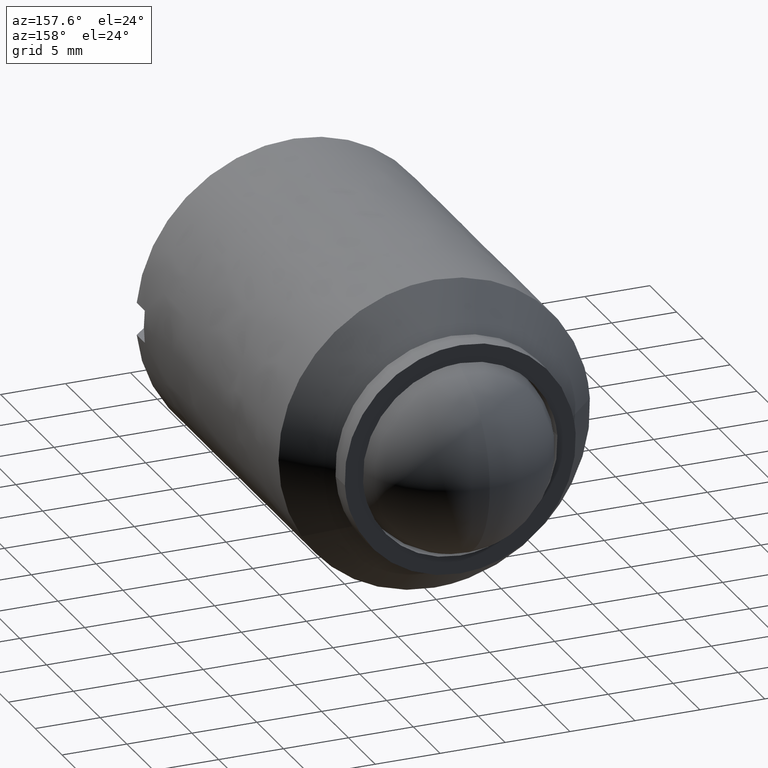
[diagram: clean part render]
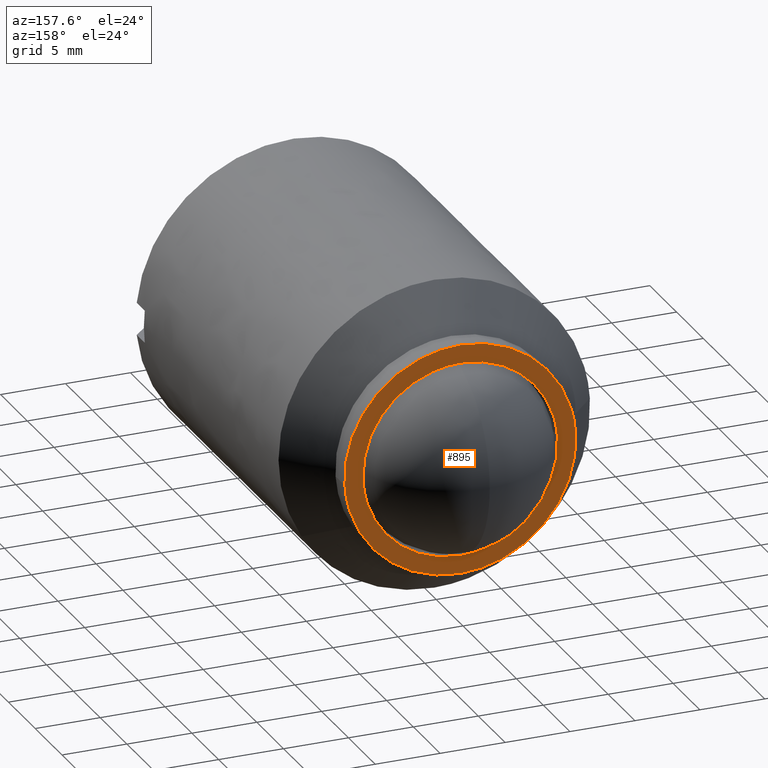
[diagram: same view with one face highlighted and labeled with its STEP entity id]
A machine part, auxiliary view. The second image highlights one B-rep face of the part: STEP entity #895.
In plain terms, the highlighted face is a freeform B-spline surface patch.
Its self-contained STEP definition (entity closure, byte-faithful):
#83=CARTESIAN_POINT('',(-7.476880907055129,-5.500000000000000,0.588431730604044));
#84=VERTEX_POINT('',#83);
#90=CARTESIAN_POINT('',(0.0,-5.500000000000000,7.500000000000000));
#91=VERTEX_POINT('',#90);
#92=CARTESIAN_POINT('',(0.0,-5.500000000000000,7.500000000000000));
#93=CARTESIAN_POINT('',(-6.932939372016810,-5.500000000000001,7.500000000000000));
#94=CARTESIAN_POINT('',(-7.476880907055129,-5.500000000000001,0.588431730604044));
#102=(BOUNDED_CURVE()B_SPLINE_CURVE(2,(#92,#93,#94),.UNSPECIFIED.,.F.,.U.)B_SPLINE_CURVE_WITH_KNOTS((3,3),(0.0,0.236331564006562),.UNSPECIFIED.)CURVE()GEOMETRIC_REPRESENTATION_ITEM()RATIONAL_B_SPLINE_CURVE((1.0,0.723120350043603,0.969723905813483))REPRESENTATION_ITEM(''));
#103=EDGE_CURVE('',#91,#84,#102,.T.);
#105=CARTESIAN_POINT('',(7.476880907055129,-5.500000000000000,-0.588431730604044));
#106=VERTEX_POINT('',#105);
#107=CARTESIAN_POINT('',(7.476880907055129,-5.500000000000000,-0.588431730604044));
#108=CARTESIAN_POINT('',(7.500000000000000,-5.500000000000000,-0.294670032226402));
#109=CARTESIAN_POINT('',(7.500000000000000,-5.500000000000000,0.0));
#110=CARTESIAN_POINT('',(7.500000000000000,-5.500000000000000,7.500000000000000));
#111=CARTESIAN_POINT('',(0.0,-5.500000000000000,7.500000000000000));
#119=(BOUNDED_CURVE()B_SPLINE_CURVE(2,(#107,#108,#109,#110,#111),.UNSPECIFIED.,.F.,.U.)B_SPLINE_CURVE_WITH_KNOTS((3,2,3),(0.736331564006562,0.750000000000000,1.0),.UNSPECIFIED.)CURVE()GEOMETRIC_REPRESENTATION_ITEM()RATIONAL_B_SPLINE_CURVE((0.969723905813483,0.983986431142945,1.0,0.707106781186547,1.0))REPRESENTATION_ITEM(''));
#120=EDGE_CURVE('',#106,#91,#119,.T.);
#200=CARTESIAN_POINT('',(0.0,-5.500000000000000,-7.500000000000000));
#201=VERTEX_POINT('',#200);
#202=CARTESIAN_POINT('',(0.0,-5.500000000000000,-7.500000000000000));
#203=CARTESIAN_POINT('',(6.932939372016812,-5.500000000000000,-7.500000000000000));
#204=CARTESIAN_POINT('',(7.476880907055129,-5.500000000000000,-0.588431730604044));
#212=(BOUNDED_CURVE()B_SPLINE_CURVE(2,(#202,#203,#204),.UNSPECIFIED.,.F.,.U.)B_SPLINE_CURVE_WITH_KNOTS((3,3),(0.500000000000000,0.736331564006562),.UNSPECIFIED.)CURVE()GEOMETRIC_REPRESENTATION_ITEM()RATIONAL_B_SPLINE_CURVE((1.0,0.723120350043603,0.969723905813483))REPRESENTATION_ITEM(''));
#213=EDGE_CURVE('',#201,#106,#212,.T.);
#215=CARTESIAN_POINT('',(-7.476880907055129,-5.500000000000001,0.588431730604044));
#216=CARTESIAN_POINT('',(-7.500000000000000,-5.500000000000001,0.294670032226404));
#217=CARTESIAN_POINT('',(-7.500000000000000,-5.500000000000000,0.0));
#218=CARTESIAN_POINT('',(-7.500000000000000,-5.500000000000000,-7.500000000000000));
#219=CARTESIAN_POINT('',(0.0,-5.500000000000000,-7.500000000000000));
#227=(BOUNDED_CURVE()B_SPLINE_CURVE(2,(#215,#216,#217,#218,#219),.UNSPECIFIED.,.F.,.U.)B_SPLINE_CURVE_WITH_KNOTS((3,2,3),(0.236331564006562,0.250000000000000,0.500000000000000),.UNSPECIFIED.)CURVE()GEOMETRIC_REPRESENTATION_ITEM()RATIONAL_B_SPLINE_CURVE((0.969723905813483,0.983986431142945,1.0,0.707106781186547,1.0))REPRESENTATION_ITEM(''));
#228=EDGE_CURVE('',#84,#201,#227,.T.);
#271=CARTESIAN_POINT('',(8.883400044957174,-5.500000000000000,-0.543326459160618));
#272=VERTEX_POINT('',#271);
#278=CARTESIAN_POINT('',(0.0,-5.500000000000000,8.899999999999999));
#279=VERTEX_POINT('',#278);
#280=CARTESIAN_POINT('',(8.883400044957174,-5.500000000000000,-0.543326459160618));
#281=CARTESIAN_POINT('',(8.900000000000000,-5.500000000000001,-0.271916814237175));
#282=CARTESIAN_POINT('',(8.900000000000000,-5.500000000000000,-2.571673E-015));
#283=CARTESIAN_POINT('',(8.900000000000000,-5.500000000000001,8.899999999999999));
#284=CARTESIAN_POINT('',(0.0,-5.500000000000000,8.899999999999999));
#292=(BOUNDED_CURVE()B_SPLINE_CURVE(2,(#280,#281,#282,#283,#284),.UNSPECIFIED.,.F.,.U.)B_SPLINE_CURVE_WITH_KNOTS((3,2,3),(0.239333069900650,0.250000000000000,0.500000000000000),.UNSPECIFIED.)CURVE()GEOMETRIC_REPRESENTATION_ITEM()RATIONAL_B_SPLINE_CURVE((0.976072272406359,0.987502914033373,1.0,0.707106781186548,1.0))REPRESENTATION_ITEM(''));
#293=EDGE_CURVE('',#272,#279,#292,.T.);
#295=CARTESIAN_POINT('',(-8.883400044957174,-5.500000000000000,0.543326459160610));
#296=VERTEX_POINT('',#295);
#297=CARTESIAN_POINT('',(0.0,-5.500000000000000,8.899999999999999));
#298=CARTESIAN_POINT('',(-8.372289229018241,-5.500000000000001,8.899999999999997));
#299=CARTESIAN_POINT('',(-8.883400044957174,-5.500000000000000,0.543326459160610));
#307=(BOUNDED_CURVE()B_SPLINE_CURVE(2,(#297,#298,#299),.UNSPECIFIED.,.F.,.U.)B_SPLINE_CURVE_WITH_KNOTS((3,3),(0.500000000000000,0.739333069900650),.UNSPECIFIED.)CURVE()GEOMETRIC_REPRESENTATION_ITEM()RATIONAL_B_SPLINE_CURVE((1.0,0.719603867153174,0.976072272406359))REPRESENTATION_ITEM(''));
#308=EDGE_CURVE('',#279,#296,#307,.T.);
#397=CARTESIAN_POINT('',(0.0,-5.500000000000000,-8.900000000000002));
#398=VERTEX_POINT('',#397);
#399=CARTESIAN_POINT('',(-8.883400044957174,-5.500000000000000,0.543326459160610));
#400=CARTESIAN_POINT('',(-8.900000000000000,-5.500000000000001,0.271916814237170));
#401=CARTESIAN_POINT('',(-8.900000000000000,-5.500000000000000,-2.571673E-015));
#402=CARTESIAN_POINT('',(-8.900000000000000,-5.500000000000001,-8.900000000000002));
#403=CARTESIAN_POINT('',(0.0,-5.500000000000000,-8.900000000000002));
#411=(BOUNDED_CURVE()B_SPLINE_CURVE(2,(#399,#400,#401,#402,#403),.UNSPECIFIED.,.F.,.U.)B_SPLINE_CURVE_WITH_KNOTS((3,2,3),(0.739333069900650,0.750000000000000,1.0),.UNSPECIFIED.)CURVE()GEOMETRIC_REPRESENTATION_ITEM()RATIONAL_B_SPLINE_CURVE((0.976072272406359,0.987502914033373,1.0,0.707106781186548,1.0))REPRESENTATION_ITEM(''));
#412=EDGE_CURVE('',#296,#398,#411,.T.);
#414=CARTESIAN_POINT('',(0.0,-5.500000000000000,-8.900000000000002));
#415=CARTESIAN_POINT('',(8.372289229018241,-5.500000000000001,-8.900000000000002));
#416=CARTESIAN_POINT('',(8.883400044957174,-5.500000000000000,-0.543326459160618));
#424=(BOUNDED_CURVE()B_SPLINE_CURVE(2,(#414,#415,#416),.UNSPECIFIED.,.F.,.U.)B_SPLINE_CURVE_WITH_KNOTS((3,3),(0.0,0.239333069900650),.UNSPECIFIED.)CURVE()GEOMETRIC_REPRESENTATION_ITEM()RATIONAL_B_SPLINE_CURVE((1.0,0.719603867153174,0.976072272406359))REPRESENTATION_ITEM(''));
#425=EDGE_CURVE('',#398,#272,#424,.T.);
#878=CARTESIAN_POINT('',(-9.788891344833242,-5.500000000000000,9.789109567718713));
#879=CARTESIAN_POINT('',(-9.788891344833242,-5.500000000000000,-9.789109090285512));
#880=CARTESIAN_POINT('',(9.788891981410851,-5.500000000000000,9.789109567718713));
#881=CARTESIAN_POINT('',(9.788891981410851,-5.500000000000000,-9.789109090285512));
#882=B_SPLINE_SURFACE_WITH_KNOTS('',1,1,((#878,#880),(#879,#881)),.UNSPECIFIED.,.F.,.F.,.U.,(2,2),(2,2),(0.0,19.578218658004229),(0.0,19.577783326244099),.UNSPECIFIED.);
#883=ORIENTED_EDGE('',*,*,#412,.F.);
#884=ORIENTED_EDGE('',*,*,#308,.F.);
#885=ORIENTED_EDGE('',*,*,#293,.F.);
#886=ORIENTED_EDGE('',*,*,#425,.F.);
#887=EDGE_LOOP('',(#883,#884,#885,#886));
#888=FACE_OUTER_BOUND('',#887,.T.);
#889=ORIENTED_EDGE('',*,*,#213,.T.);
#890=ORIENTED_EDGE('',*,*,#120,.T.);
#891=ORIENTED_EDGE('',*,*,#103,.T.);
#892=ORIENTED_EDGE('',*,*,#228,.T.);
#893=EDGE_LOOP('',(#889,#890,#891,#892));
#894=FACE_BOUND('',#893,.T.);
#895=ADVANCED_FACE('',(#888,#894),#882,.F.);